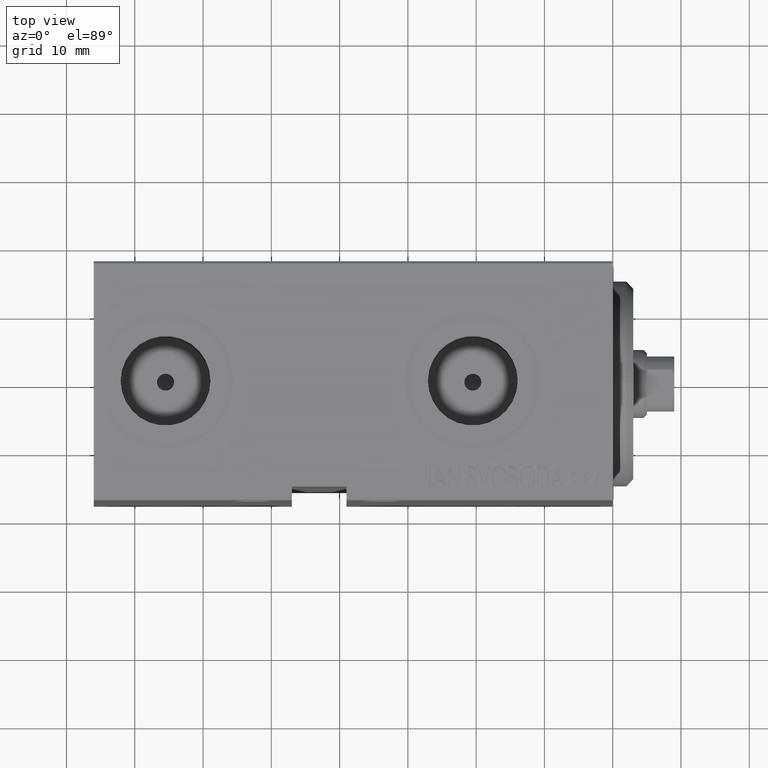
[diagram: clean part render]
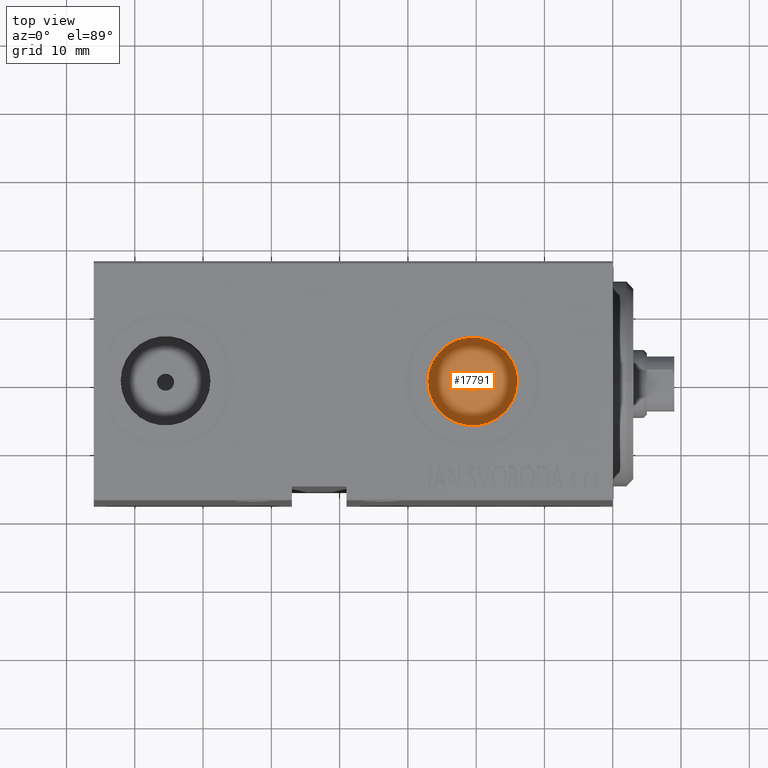
[diagram: same view with one face highlighted and labeled with its STEP entity id]
A machine part, top view. The second image highlights one B-rep face of the part: STEP entity #17791.
In plain terms, the highlighted planar face has unit normal (0, 0, 1).
Its self-contained STEP definition (entity closure, byte-faithful):
#307 = CARTESIAN_POINT ( 'NONE',  ( 13.92000000000000171, 8.058175938389579572E-16, 14.23999999999999666 ) ) ;
#1413 = DIRECTION ( 'NONE',  ( 0.000000000000000000, 0.000000000000000000, 1.000000000000000000 ) ) ;
#5004 = CIRCLE ( 'NONE', #22464, 6.579999999999999183 ) ;
#8898 = AXIS2_PLACEMENT_3D ( 'NONE', #37315, #1413, #28092 ) ;
#8913 = DIRECTION ( 'NONE',  ( 0.000000000000000000, 0.000000000000000000, 1.000000000000000000 ) ) ;
#8968 = EDGE_LOOP ( 'NONE', ( #32295, #17320 ) ) ;
#9748 = VERTEX_POINT ( 'NONE', #34420 ) ;
#10290 = EDGE_LOOP ( 'NONE', ( #13736, #10751 ) ) ;
#10751 = ORIENTED_EDGE ( 'NONE', *, *, #40134, .T. ) ;
#11403 = AXIS2_PLACEMENT_3D ( 'NONE', #17515, #8913, #18968 ) ;
#12153 = DIRECTION ( 'NONE',  ( 1.000000000000000000, 0.000000000000000000, 0.000000000000000000 ) ) ;
#12188 = PLANE ( 'NONE',  #11403 ) ;
#12857 = DIRECTION ( 'NONE',  ( 1.000000000000000000, 0.000000000000000000, 0.000000000000000000 ) ) ;
#13736 = ORIENTED_EDGE ( 'NONE', *, *, #34928, .T. ) ;
#14895 = CARTESIAN_POINT ( 'NONE',  ( 20.50000000000000000, 0.000000000000000000, 14.23999999999999666 ) ) ;
#16163 = CARTESIAN_POINT ( 'NONE',  ( 19.25000000000000355, 1.530808498934188119E-16, 14.23999999999999666 ) ) ;
#16418 = CARTESIAN_POINT ( 'NONE',  ( 21.75000000000000000, 0.000000000000000000, 14.23999999999999666 ) ) ;
#16565 = CARTESIAN_POINT ( 'NONE',  ( 20.50000000000000000, 0.000000000000000000, 14.23999999999999666 ) ) ;
#17320 = ORIENTED_EDGE ( 'NONE', *, *, #19824, .F. ) ;
#17515 = CARTESIAN_POINT ( 'NONE',  ( 20.50000000000000000, 0.000000000000000000, 14.23999999999999666 ) ) ;
#17791 = ADVANCED_FACE ( 'NONE', ( #18151, #32071 ), #12188, .T. ) ;
#18151 = FACE_BOUND ( 'NONE', #8968, .T. ) ;
#18243 = VERTEX_POINT ( 'NONE', #307 ) ;
#18968 = DIRECTION ( 'NONE',  ( 1.000000000000000000, 0.000000000000000000, -0.000000000000000000 ) ) ;
#19622 = DIRECTION ( 'NONE',  ( 0.000000000000000000, 0.000000000000000000, 1.000000000000000000 ) ) ;
#19824 = EDGE_CURVE ( 'NONE', #33489, #38155, #35075, .T. ) ;
#22464 = AXIS2_PLACEMENT_3D ( 'NONE', #16565, #19622, #12857 ) ;
#26382 = EDGE_CURVE ( 'NONE', #38155, #33489, #35231, .T. ) ;
#27393 = AXIS2_PLACEMENT_3D ( 'NONE', #14895, #38940, #41589 ) ;
#28092 = DIRECTION ( 'NONE',  ( 1.000000000000000000, 0.000000000000000000, 0.000000000000000000 ) ) ;
#32071 = FACE_OUTER_BOUND ( 'NONE', #10290, .T. ) ;
#32265 = DIRECTION ( 'NONE',  ( 0.000000000000000000, 0.000000000000000000, 1.000000000000000000 ) ) ;
#32295 = ORIENTED_EDGE ( 'NONE', *, *, #26382, .F. ) ;
#33489 = VERTEX_POINT ( 'NONE', #16163 ) ;
#34420 = CARTESIAN_POINT ( 'NONE',  ( 27.07999999999999829, 0.000000000000000000, 14.23999999999999666 ) ) ;
#34928 = EDGE_CURVE ( 'NONE', #9748, #18243, #36165, .T. ) ;
#35075 = CIRCLE ( 'NONE', #27393, 1.249999999999997558 ) ;
#35231 = CIRCLE ( 'NONE', #42244, 1.249999999999997558 ) ;
#36165 = CIRCLE ( 'NONE', #8898, 6.579999999999999183 ) ;
#37315 = CARTESIAN_POINT ( 'NONE',  ( 20.50000000000000000, 0.000000000000000000, 14.23999999999999666 ) ) ;
#38155 = VERTEX_POINT ( 'NONE', #16418 ) ;
#38628 = CARTESIAN_POINT ( 'NONE',  ( 20.50000000000000000, 0.000000000000000000, 14.23999999999999666 ) ) ;
#38940 = DIRECTION ( 'NONE',  ( 0.000000000000000000, 0.000000000000000000, 1.000000000000000000 ) ) ;
#40134 = EDGE_CURVE ( 'NONE', #18243, #9748, #5004, .T. ) ;
#41589 = DIRECTION ( 'NONE',  ( 1.000000000000000000, 0.000000000000000000, 0.000000000000000000 ) ) ;
#42244 = AXIS2_PLACEMENT_3D ( 'NONE', #38628, #32265, #12153 ) ;